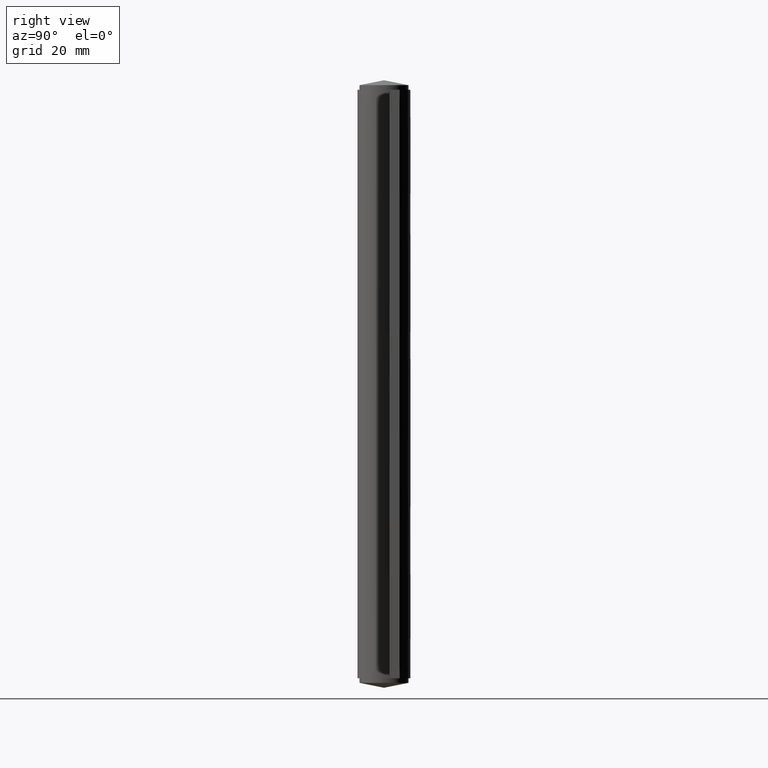
[diagram: clean part render]
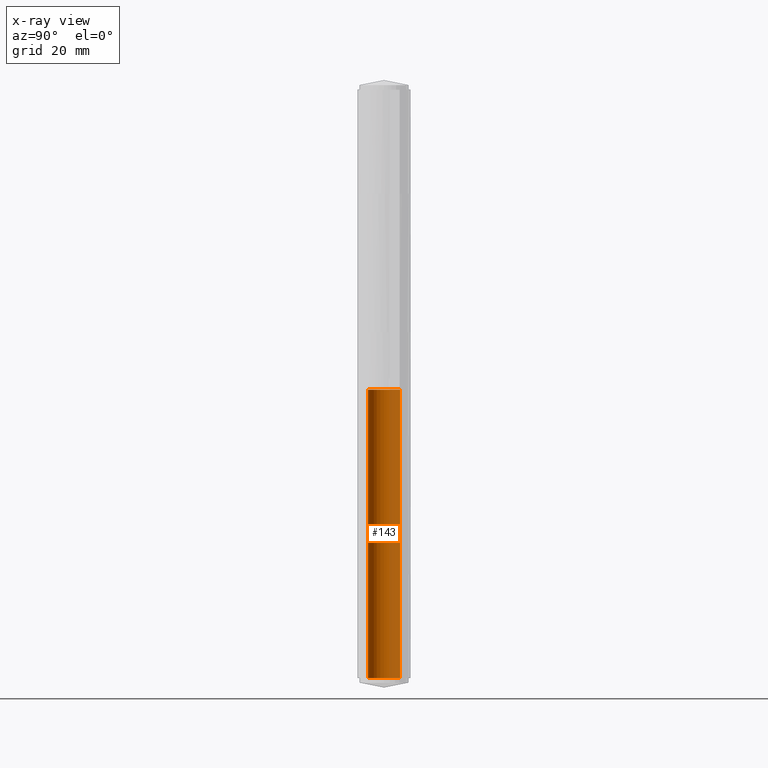
[diagram: x-ray — body ghosted, one internal face saturated and labeled with its STEP entity id]
A machine part, right view, then the same camera in x-ray: the body is ghosted and one INTERNAL B-rep face — a face not visible from any outside direction — is saturated and labeled: STEP entity #143.
In plain terms, the highlighted face is a freeform B-spline surface patch.
Its self-contained STEP definition (entity closure, byte-faithful):
#12=CARTESIAN_POINT('',(0.170936094232414,2.794780429961842,50.000007758788868));
#13=VERTEX_POINT('',#12);
#27=CARTESIAN_POINT('',(-2.800002999999972,0.0,50.000007758788861));
#28=VERTEX_POINT('',#27);
#29=CARTESIAN_POINT('',(0.170936094232412,2.794780429961821,50.000007758788861));
#30=CARTESIAN_POINT('',(0.085547829089496,2.800003000000001,50.000007758788868));
#31=CARTESIAN_POINT('',(2.829925E-014,2.800003000000000,50.000007758788861));
#32=CARTESIAN_POINT('',(-2.800002999999972,2.800003000000000,50.000007758788868));
#33=CARTESIAN_POINT('',(-2.800002999999972,0.0,50.000007758788861));
#41=(BOUNDED_CURVE()B_SPLINE_CURVE(2,(#29,#30,#31,#32,#33),.UNSPECIFIED.,.F.,.U.)B_SPLINE_CURVE_WITH_KNOTS((3,2,3),(0.239332962217942,0.250000000000000,0.500000000000000),.UNSPECIFIED.)CURVE()GEOMETRIC_REPRESENTATION_ITEM()RATIONAL_B_SPLINE_CURVE((0.976072041621708,0.987502787875233,1.0,0.707106781186548,1.0))REPRESENTATION_ITEM(''));
#42=EDGE_CURVE('',#13,#28,#41,.T.);
#44=CARTESIAN_POINT('',(-0.170936094232357,-2.794780429961842,50.000007758788868));
#45=VERTEX_POINT('',#44);
#46=CARTESIAN_POINT('',(-2.800002999999972,0.0,50.000007758788861));
#47=CARTESIAN_POINT('',(-2.800002999999973,-2.633979809086684,50.000007758788861));
#48=CARTESIAN_POINT('',(-0.170936094232357,-2.794780429961821,50.000007758788861));
#56=(BOUNDED_CURVE()B_SPLINE_CURVE(2,(#46,#47,#48),.UNSPECIFIED.,.F.,.U.)B_SPLINE_CURVE_WITH_KNOTS((3,3),(0.500000000000000,0.739332962217942),.UNSPECIFIED.)CURVE()GEOMETRIC_REPRESENTATION_ITEM()RATIONAL_B_SPLINE_CURVE((1.0,0.719603993311315,0.976072041621708))REPRESENTATION_ITEM(''));
#57=EDGE_CURVE('',#28,#45,#56,.T.);
#77=CARTESIAN_POINT('',(0.170936093843243,2.794780429985667,-1.249999928710949));
#78=CARTESIAN_POINT('',(-2.623844336142424,2.965716523828888,-1.249999928710949));
#79=CARTESIAN_POINT('',(-2.794780429985645,0.170936093843221,-1.249999928710949));
#80=CARTESIAN_POINT('',(-2.965716523828865,-2.623844336142446,-1.249999928710949));
#81=CARTESIAN_POINT('',(-0.170936093843199,-2.794780429985667,-1.249999928710949));
#82=CARTESIAN_POINT('',(0.170936093843249,2.794780429985667,51.281257950976361));
#83=CARTESIAN_POINT('',(-2.623844336142418,2.965716523828888,51.281257950976354));
#84=CARTESIAN_POINT('',(-2.794780429985639,0.170936093843221,51.281257950976361));
#85=CARTESIAN_POINT('',(-2.965716523828859,-2.623844336142446,51.281257950976354));
#86=CARTESIAN_POINT('',(-0.170936093843193,-2.794780429985667,51.281257950976361));
#94=(BOUNDED_SURFACE()B_SPLINE_SURFACE(2,1,((#77,#82),(#78,#83),(#79,#84),(#80,#85),(#81,#86)),.UNSPECIFIED.,.F.,.F.,.U.)B_SPLINE_SURFACE_WITH_KNOTS((3,2,3),(2,2),(0.0,4.639196869141487,9.278393738282974),(0.0,52.531257879687310),.UNSPECIFIED.)GEOMETRIC_REPRESENTATION_ITEM()RATIONAL_B_SPLINE_SURFACE(((1.0,1.0),(0.707106781186548,0.707106781186548),(1.0,1.0),(0.707106781186548,0.707106781186548),(1.0,1.0)))REPRESENTATION_ITEM('')SURFACE());
#95=CARTESIAN_POINT('',(0.170936094232409,2.794780429961873,0.000000258789044));
#96=VERTEX_POINT('',#95);
#97=CARTESIAN_POINT('',(-2.800003000000038,0.0,0.000000258789058));
#98=VERTEX_POINT('',#97);
#99=CARTESIAN_POINT('',(0.170936094232410,2.794780429961880,0.000000258789044));
#100=CARTESIAN_POINT('',(0.085547829089491,2.800003000000060,0.000000258789044));
#101=CARTESIAN_POINT('',(2.217622E-014,2.800003000000060,0.000000258789058));
#102=CARTESIAN_POINT('',(-2.800003000000037,2.800003000000060,0.000000258789072));
#103=CARTESIAN_POINT('',(-2.800003000000038,0.0,0.000000258789058));
#111=(BOUNDED_CURVE()B_SPLINE_CURVE(2,(#99,#100,#101,#102,#103),.UNSPECIFIED.,.F.,.U.)B_SPLINE_CURVE_WITH_KNOTS((3,2,3),(0.239332962217942,0.250000000000000,0.500000000000000),.UNSPECIFIED.)CURVE()GEOMETRIC_REPRESENTATION_ITEM()RATIONAL_B_SPLINE_CURVE((0.976072041621708,0.987502787875233,1.0,0.707106781186548,1.0))REPRESENTATION_ITEM(''));
#112=EDGE_CURVE('',#96,#98,#111,.T.);
#113=ORIENTED_EDGE('',*,*,#112,.T.);
#114=CARTESIAN_POINT('',(-0.170936094232364,-2.794780429961873,0.000000258789058));
#115=VERTEX_POINT('',#114);
#116=CARTESIAN_POINT('',(-2.800003000000038,0.0,0.000000258789058));
#117=CARTESIAN_POINT('',(-2.800003000000038,-2.633979809086742,0.000000258789058));
#118=CARTESIAN_POINT('',(-0.170936094232365,-2.794780429961881,0.000000258789072));
#126=(BOUNDED_CURVE()B_SPLINE_CURVE(2,(#116,#117,#118),.UNSPECIFIED.,.F.,.U.)B_SPLINE_CURVE_WITH_KNOTS((3,3),(0.500000000000000,0.739332962217942),.UNSPECIFIED.)CURVE()GEOMETRIC_REPRESENTATION_ITEM()RATIONAL_B_SPLINE_CURVE((1.0,0.719603993311315,0.976072041621708))REPRESENTATION_ITEM(''));
#127=EDGE_CURVE('',#98,#115,#126,.T.);
#128=ORIENTED_EDGE('',*,*,#127,.T.);
#129=CARTESIAN_POINT('',(-0.170936094232364,-2.794780429961873,0.000000258789058));
#130=CARTESIAN_POINT('',(-0.170936094232357,-2.794780429961842,50.000007758788868));
#131=QUASI_UNIFORM_CURVE('',1,(#129,#130),.UNSPECIFIED.,.F.,.U.);
#132=EDGE_CURVE('',#115,#45,#131,.T.);
#133=ORIENTED_EDGE('',*,*,#132,.T.);
#134=ORIENTED_EDGE('',*,*,#57,.F.);
#135=ORIENTED_EDGE('',*,*,#42,.F.);
#136=CARTESIAN_POINT('',(0.170936094232409,2.794780429961873,0.000000258789044));
#137=CARTESIAN_POINT('',(0.170936094232414,2.794780429961842,50.000007758788868));
#138=QUASI_UNIFORM_CURVE('',1,(#136,#137),.UNSPECIFIED.,.F.,.U.);
#139=EDGE_CURVE('',#96,#13,#138,.T.);
#140=ORIENTED_EDGE('',*,*,#139,.F.);
#141=EDGE_LOOP('',(#113,#128,#133,#134,#135,#140));
#142=FACE_OUTER_BOUND('',#141,.T.);
#143=ADVANCED_FACE('',(#142),#94,.T.);